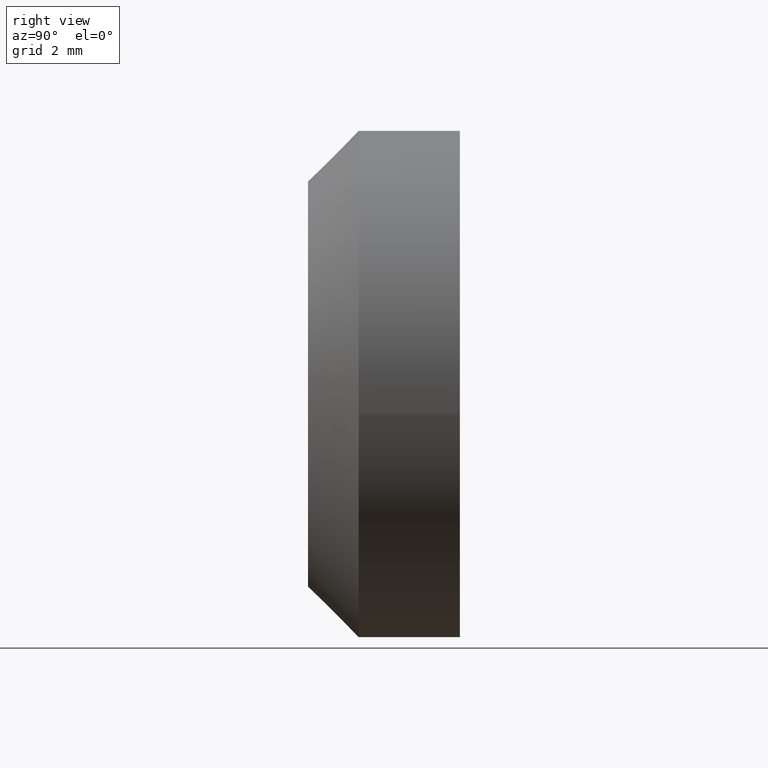
[diagram: clean part render]
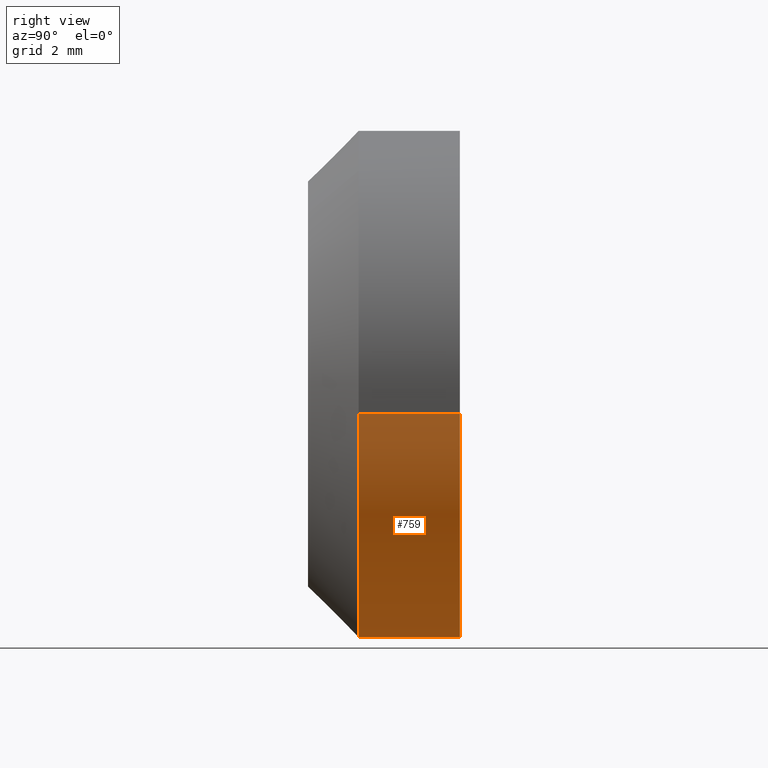
[diagram: same view with one face highlighted and labeled with its STEP entity id]
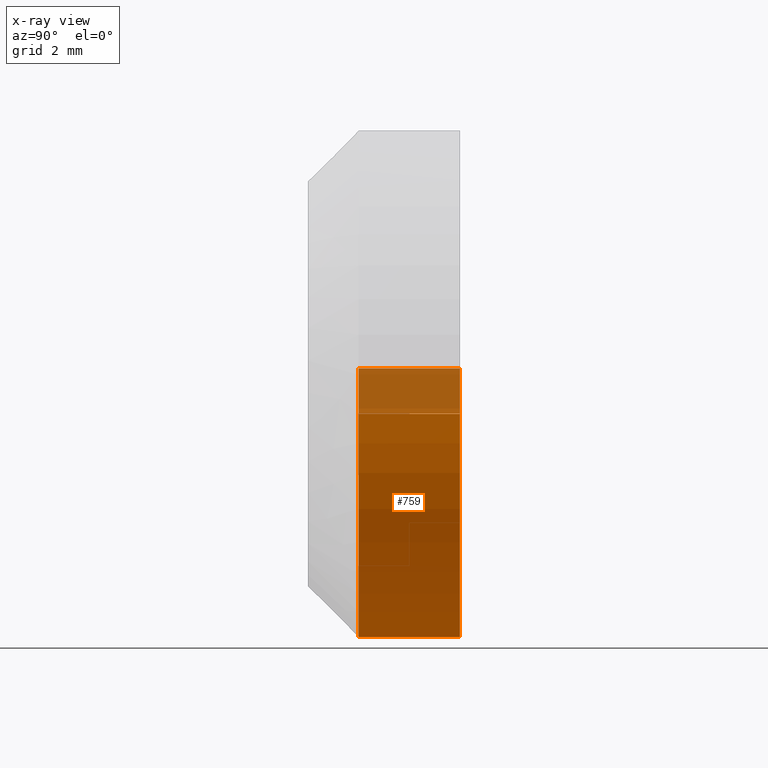
[diagram: x-ray of the same camera — body ghosted, the highlighted face saturated]
A machine part, right view. The second image highlights one B-rep face of the part: STEP entity #759.
The next image is the same camera in x-ray: the body ghosted, the highlighted face saturated — about 17% of this face is hidden behind the body in this view.
In plain terms, the highlighted face is a freeform B-spline surface patch.
Its self-contained STEP definition (entity closure, byte-faithful):
#438=CARTESIAN_POINT('',(4.965048002999415,-1.000000000000000,-0.590168050559857));
#439=VERTEX_POINT('',#438);
#505=CARTESIAN_POINT('',(-4.990674099992544,-1.000000000000000,0.305240933789139));
#506=VERTEX_POINT('',#505);
#520=CARTESIAN_POINT('',(4.898425E-016,-1.0,-5.0));
#521=VERTEX_POINT('',#520);
#522=CARTESIAN_POINT('',(-4.990674099992544,-1.000000000000000,0.305240933789139));
#523=CARTESIAN_POINT('',(-4.999999999999999,-1.0,0.152762932077514));
#524=CARTESIAN_POINT('',(-4.999999999999999,-1.0,0.0));
#525=CARTESIAN_POINT('',(-4.999999999999998,-1.0,-5.000000000000001));
#526=CARTESIAN_POINT('',(4.898425E-016,-1.0,-5.0));
#534=(BOUNDED_CURVE()B_SPLINE_CURVE(2,(#522,#523,#524,#525,#526),.UNSPECIFIED.,.F.,.U.)B_SPLINE_CURVE_WITH_KNOTS((3,2,3),(0.739333023226263,0.750000000000000,1.0),.UNSPECIFIED.)CURVE()GEOMETRIC_REPRESENTATION_ITEM()RATIONAL_B_SPLINE_CURVE((0.976072172374189,0.987502859350927,1.0,0.707106781186548,1.0))REPRESENTATION_ITEM(''));
#535=EDGE_CURVE('',#506,#521,#534,.T.);
#537=CARTESIAN_POINT('',(4.898425E-016,-1.0,-5.0));
#538=CARTESIAN_POINT('',(4.440875442468178,-1.0,-5.0));
#539=CARTESIAN_POINT('',(4.965048002999415,-1.000000000000000,-0.590168050559856));
#547=(BOUNDED_CURVE()B_SPLINE_CURVE(2,(#537,#538,#539),.UNSPECIFIED.,.F.,.U.)B_SPLINE_CURVE_WITH_KNOTS((3,3),(0.0,0.229562579808786),.UNSPECIFIED.)CURVE()GEOMETRIC_REPRESENTATION_ITEM()RATIONAL_B_SPLINE_CURVE((1.0,0.731050708322738,0.956026962526900))REPRESENTATION_ITEM(''));
#548=EDGE_CURVE('',#521,#439,#547,.T.);
#654=CARTESIAN_POINT('',(4.965048007524626,0.999999999999988,-0.590168012489337));
#655=VERTEX_POINT('',#654);
#673=CARTESIAN_POINT('',(-4.990674101307194,0.999999999999992,0.305240912294563));
#674=VERTEX_POINT('',#673);
#688=CARTESIAN_POINT('',(-4.990674101307194,0.999999999999992,0.305240912294563));
#689=CARTESIAN_POINT('',(-4.990674099992544,-1.000000000000000,0.305240933789139));
#690=QUASI_UNIFORM_CURVE('',1,(#688,#689),.UNSPECIFIED.,.F.,.U.);
#691=EDGE_CURVE('',#674,#506,#690,.T.);
#697=CARTESIAN_POINT('',(4.965048007524626,0.999999999999988,-0.590168012489337));
#698=CARTESIAN_POINT('',(4.965048002999415,-1.000000000000000,-0.590168050559857));
#699=QUASI_UNIFORM_CURVE('',1,(#697,#698),.UNSPECIFIED.,.F.,.U.);
#700=EDGE_CURVE('',#655,#439,#699,.T.);
#705=CARTESIAN_POINT('',(-4.990673992109333,1.050000000000000,0.305242697674285));
#706=CARTESIAN_POINT('',(-5.295916689783618,1.050000000000000,-4.685431294435048));
#707=CARTESIAN_POINT('',(-0.305242697674284,1.050000000000000,-4.990673992109334));
#708=CARTESIAN_POINT('',(4.407717454197505,1.050000000000000,-5.278930983662638));
#709=CARTESIAN_POINT('',(4.965047631818333,1.050000000000000,-0.590171173283792));
#710=CARTESIAN_POINT('',(-4.990673992109333,-1.051250000000000,0.305242697674285));
#711=CARTESIAN_POINT('',(-5.295916689783618,-1.051250000000000,-4.685431294435048));
#712=CARTESIAN_POINT('',(-0.305242697674284,-1.051250000000000,-4.990673992109334));
#713=CARTESIAN_POINT('',(4.407717454197505,-1.051250000000000,-5.278930983662638));
#714=CARTESIAN_POINT('',(4.965047631818333,-1.051250000000000,-0.590171173283792));
#722=(BOUNDED_SURFACE()B_SPLINE_SURFACE(2,1,((#705,#710),(#706,#711),(#707,#712),(#708,#713),(#709,#714)),.UNSPECIFIED.,.F.,.F.,.U.)B_SPLINE_SURFACE_WITH_KNOTS((3,2,3),(2,2),(0.0,8.284271247461899,16.237171645025320),(0.0,2.101250000000000),.UNSPECIFIED.)GEOMETRIC_REPRESENTATION_ITEM()RATIONAL_B_SPLINE_SURFACE(((1.0,1.0),(0.707106781186548,0.707106781186548),(1.0,1.0),(0.718822509939086,0.718822509939086),(0.977505800795127,0.977505800795127)))REPRESENTATION_ITEM('')SURFACE());
#723=CARTESIAN_POINT('',(4.898425E-016,1.0,-5.0));
#724=VERTEX_POINT('',#723);
#725=CARTESIAN_POINT('',(4.898425E-016,1.0,-5.0));
#726=CARTESIAN_POINT('',(4.440875476759202,1.0,-4.999999999999998));
#727=CARTESIAN_POINT('',(4.965048007524626,0.999999999999988,-0.590168012489337));
#735=(BOUNDED_CURVE()B_SPLINE_CURVE(2,(#725,#726,#727),.UNSPECIFIED.,.F.,.U.)B_SPLINE_CURVE_WITH_KNOTS((3,3),(0.0,0.229562581104653),.UNSPECIFIED.)CURVE()GEOMETRIC_REPRESENTATION_ITEM()RATIONAL_B_SPLINE_CURVE((1.0,0.731050706804535,0.956026965066855))REPRESENTATION_ITEM(''));
#736=EDGE_CURVE('',#724,#655,#735,.T.);
#737=ORIENTED_EDGE('',*,*,#736,.T.);
#738=ORIENTED_EDGE('',*,*,#700,.T.);
#739=ORIENTED_EDGE('',*,*,#548,.F.);
#740=ORIENTED_EDGE('',*,*,#535,.F.);
#741=ORIENTED_EDGE('',*,*,#691,.F.);
#742=CARTESIAN_POINT('',(-4.990674101307194,0.999999999999992,0.305240912294563));
#743=CARTESIAN_POINT('',(-5.0,1.0,0.152762921300092));
#744=CARTESIAN_POINT('',(-4.999999999999999,1.0,0.0));
#745=CARTESIAN_POINT('',(-4.999999999999998,1.0,-5.000000000000001));
#746=CARTESIAN_POINT('',(4.898425E-016,1.0,-5.0));
#754=(BOUNDED_CURVE()B_SPLINE_CURVE(2,(#742,#743,#744,#745,#746),.UNSPECIFIED.,.F.,.U.)B_SPLINE_CURVE_WITH_KNOTS((3,2,3),(0.739333023969413,0.750000000000000,1.0),.UNSPECIFIED.)CURVE()GEOMETRIC_REPRESENTATION_ITEM()RATIONAL_B_SPLINE_CURVE((0.976072173966902,0.987502860221582,1.0,0.707106781186548,1.0))REPRESENTATION_ITEM(''));
#755=EDGE_CURVE('',#674,#724,#754,.T.);
#756=ORIENTED_EDGE('',*,*,#755,.T.);
#757=EDGE_LOOP('',(#737,#738,#739,#740,#741,#756));
#758=FACE_OUTER_BOUND('',#757,.T.);
#759=ADVANCED_FACE('',(#758),#722,.T.);